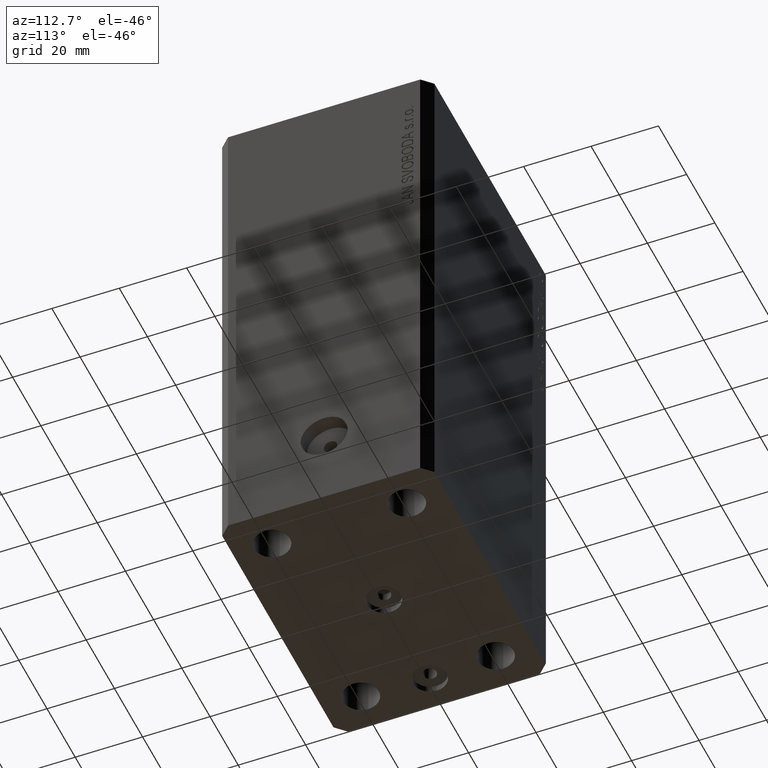
[diagram: clean part render]
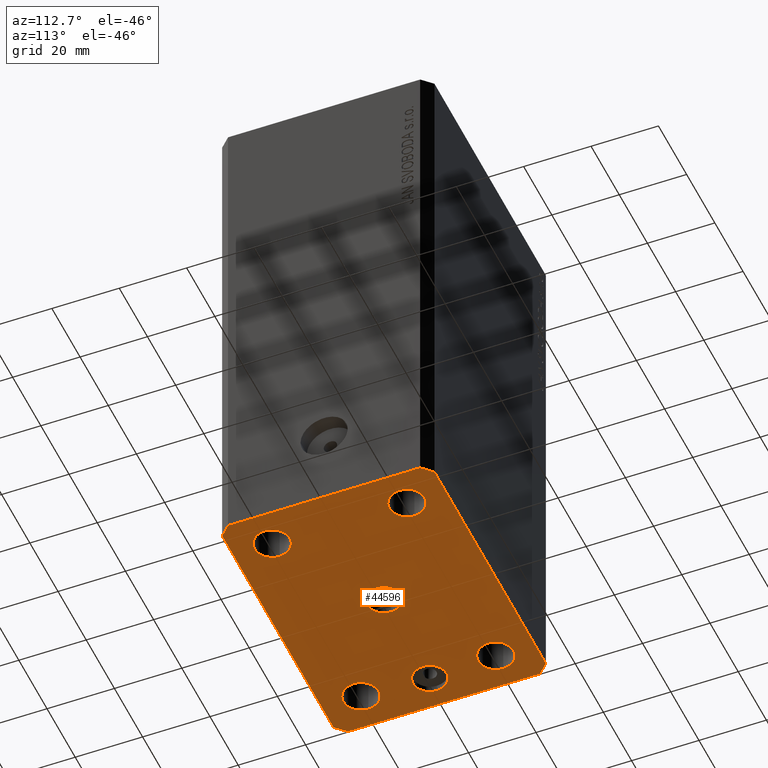
[diagram: same view with one face highlighted and labeled with its STEP entity id]
A machine part, auxiliary view. The second image highlights one B-rep face of the part: STEP entity #44596.
In plain terms, the highlighted planar face has unit normal (0, 0, 1).
Its self-contained STEP definition (entity closure, byte-faithful):
#205 = DIRECTION ( 'NONE',  ( -0.000000000000000000, -0.000000000000000000, -1.000000000000000000 ) ) ;
#392 = EDGE_CURVE ( 'NONE', #41515, #33416, #40747, .T. ) ;
#425 = CARTESIAN_POINT ( 'NONE',  ( -32.50000000000000000, 0.000000000000000000, -153.0000000000000000 ) ) ;
#462 = ORIENTED_EDGE ( 'NONE', *, *, #31463, .F. ) ;
#696 = AXIS2_PLACEMENT_3D ( 'NONE', #38533, #205, #13966 ) ;
#1376 = EDGE_CURVE ( 'NONE', #23502, #16459, #1660, .T. ) ;
#1660 = CIRCLE ( 'NONE', #4539, 5.249999999999997335 ) ;
#2056 = CARTESIAN_POINT ( 'NONE',  ( 42.50000000000051870, 28.49999999999995381, -153.0000000000000000 ) ) ;
#2268 = CARTESIAN_POINT ( 'NONE',  ( 5.000000000000000000, 6.123233995736765296E-16, -153.0000000000000000 ) ) ;
#2312 = CARTESIAN_POINT ( 'NONE',  ( -27.50000000000000355, 6.123233995736762338E-16, -153.0000000000000000 ) ) ;
#2410 = CARTESIAN_POINT ( 'NONE',  ( -42.50000000000000000, 28.50000000000000000, -153.0000000000000000 ) ) ;
#2689 = ORIENTED_EDGE ( 'NONE', *, *, #12583, .F. ) ;
#2719 = DIRECTION ( 'NONE',  ( 0.7071067811865471286, -0.7071067811865479058, 0.000000000000000000 ) ) ;
#2720 = EDGE_CURVE ( 'NONE', #33416, #42301, #21864, .T. ) ;
#3277 = VERTEX_POINT ( 'NONE', #2268 ) ;
#3420 = EDGE_CURVE ( 'NONE', #5169, #42276, #20996, .T. ) ;
#3534 = AXIS2_PLACEMENT_3D ( 'NONE', #12638, #35486, #42470 ) ;
#3647 = CIRCLE ( 'NONE', #40343, 5.249999999999997335 ) ;
#4539 = AXIS2_PLACEMENT_3D ( 'NONE', #19868, #39698, #6300 ) ;
#4886 = EDGE_LOOP ( 'NONE', ( #21499, #24214 ) ) ;
#4949 = ORIENTED_EDGE ( 'NONE', *, *, #28415, .F. ) ;
#5169 = VERTEX_POINT ( 'NONE', #43977 ) ;
#5636 = PLANE ( 'NONE',  #3534 ) ;
#5879 = EDGE_LOOP ( 'NONE', ( #2689, #25726 ) ) ;
#6034 = CARTESIAN_POINT ( 'NONE',  ( -36.74999999999999289, -20.00000000000000355, -153.0000000000000000 ) ) ;
#6300 = DIRECTION ( 'NONE',  ( 1.000000000000000000, 0.000000000000000000, 0.000000000000000000 ) ) ;
#6659 = VECTOR ( 'NONE', #30858, 1000.000000000000000 ) ;
#6900 = ORIENTED_EDGE ( 'NONE', *, *, #14220, .F. ) ;
#6961 = DIRECTION ( 'NONE',  ( 1.000000000000000000, 0.000000000000000000, 0.000000000000000000 ) ) ;
#7461 = CIRCLE ( 'NONE', #38552, 5.249999999999997335 ) ;
#7475 = CARTESIAN_POINT ( 'NONE',  ( 39.50000000000056843, 31.50000000000000000, -153.0000000000000000 ) ) ;
#7677 = CARTESIAN_POINT ( 'NONE',  ( -26.24999999999999289, -20.00000000000000355, -153.0000000000000000 ) ) ;
#8091 = DIRECTION ( 'NONE',  ( -1.000000000000000000, 0.000000000000000000, 0.000000000000000000 ) ) ;
#8298 = EDGE_CURVE ( 'NONE', #16459, #23502, #7461, .T. ) ;
#8504 = CARTESIAN_POINT ( 'NONE',  ( 39.50000000000056843, 31.50000000000000000, -153.0000000000000000 ) ) ;
#8936 = AXIS2_PLACEMENT_3D ( 'NONE', #29349, #14690, #18968 ) ;
#9036 = VERTEX_POINT ( 'NONE', #2056 ) ;
#9836 = VECTOR ( 'NONE', #11084, 1000.000000000000000 ) ;
#9943 = ORIENTED_EDGE ( 'NONE', *, *, #10502, .F. ) ;
#10502 = EDGE_CURVE ( 'NONE', #37693, #40212, #28420, .T. ) ;
#10778 = ORIENTED_EDGE ( 'NONE', *, *, #392, .F. ) ;
#11084 = DIRECTION ( 'NONE',  ( -1.000000000000000000, 0.000000000000000000, 0.000000000000000000 ) ) ;
#11244 = CARTESIAN_POINT ( 'NONE',  ( -37.50000000000000000, 0.000000000000000000, -153.0000000000000000 ) ) ;
#11579 = CARTESIAN_POINT ( 'NONE',  ( 31.49999999999999289, -20.00000000000000355, -153.0000000000000000 ) ) ;
#12145 = CARTESIAN_POINT ( 'NONE',  ( 31.50000000000000000, 19.99999999999999289, -153.0000000000000000 ) ) ;
#12277 = CIRCLE ( 'NONE', #37490, 5.249999999999997335 ) ;
#12327 = CARTESIAN_POINT ( 'NONE',  ( -31.49999999999999289, -20.00000000000000355, -153.0000000000000000 ) ) ;
#12583 = EDGE_CURVE ( 'NONE', #22463, #17443, #25581, .T. ) ;
#12638 = CARTESIAN_POINT ( 'NONE',  ( 0.000000000000000000, 0.000000000000000000, -153.0000000000000000 ) ) ;
#13059 = EDGE_CURVE ( 'NONE', #17443, #22463, #33528, .T. ) ;
#13085 = VECTOR ( 'NONE', #31097, 1000.000000000000114 ) ;
#13345 = EDGE_LOOP ( 'NONE', ( #9943, #13847 ) ) ;
#13601 = CIRCLE ( 'NONE', #28030, 5.250000000000000888 ) ;
#13771 = AXIS2_PLACEMENT_3D ( 'NONE', #37706, #20137, #16744 ) ;
#13847 = ORIENTED_EDGE ( 'NONE', *, *, #26024, .F. ) ;
#13966 = DIRECTION ( 'NONE',  ( 1.000000000000000000, 0.000000000000000000, 0.000000000000000000 ) ) ;
#14116 = VECTOR ( 'NONE', #31523, 1000.000000000000000 ) ;
#14220 = EDGE_CURVE ( 'NONE', #42301, #9036, #24745, .T. ) ;
#14225 = ORIENTED_EDGE ( 'NONE', *, *, #24541, .F. ) ;
#14527 = FACE_BOUND ( 'NONE', #43108, .T. ) ;
#14690 = DIRECTION ( 'NONE',  ( -0.000000000000000000, -0.000000000000000000, -1.000000000000000000 ) ) ;
#14765 = CARTESIAN_POINT ( 'NONE',  ( -36.75000000000000000, 19.99999999999999645, -153.0000000000000000 ) ) ;
#14971 = FACE_BOUND ( 'NONE', #17059, .T. ) ;
#15310 = DIRECTION ( 'NONE',  ( 1.000000000000000000, 0.000000000000000000, 0.000000000000000000 ) ) ;
#15722 = DIRECTION ( 'NONE',  ( 1.000000000000000000, 0.000000000000000000, 0.000000000000000000 ) ) ;
#15829 = CARTESIAN_POINT ( 'NONE',  ( -42.50000000000000000, -28.50000000000000000, -153.0000000000000000 ) ) ;
#15931 = CARTESIAN_POINT ( 'NONE',  ( -42.50000000000000000, 28.50000000000000000, -153.0000000000000000 ) ) ;
#16269 = ORIENTED_EDGE ( 'NONE', *, *, #28427, .F. ) ;
#16459 = VERTEX_POINT ( 'NONE', #17914 ) ;
#16744 = DIRECTION ( 'NONE',  ( -1.000000000000000000, 0.000000000000000000, 0.000000000000000000 ) ) ;
#17059 = EDGE_LOOP ( 'NONE', ( #16269, #39902 ) ) ;
#17157 = CARTESIAN_POINT ( 'NONE',  ( -39.50000000000000711, 31.50000000000000000, -153.0000000000000000 ) ) ;
#17437 = EDGE_LOOP ( 'NONE', ( #21632, #18183 ) ) ;
#17443 = VERTEX_POINT ( 'NONE', #2312 ) ;
#17914 = CARTESIAN_POINT ( 'NONE',  ( 36.75000000000000000, 19.99999999999999289, -153.0000000000000000 ) ) ;
#18068 = CIRCLE ( 'NONE', #43235, 5.250000000000000888 ) ;
#18183 = ORIENTED_EDGE ( 'NONE', *, *, #1376, .F. ) ;
#18435 = EDGE_CURVE ( 'NONE', #27056, #5169, #30981, .T. ) ;
#18893 = CIRCLE ( 'NONE', #40469, 5.000000000000000000 ) ;
#18968 = DIRECTION ( 'NONE',  ( 1.000000000000000000, 0.000000000000000000, 0.000000000000000000 ) ) ;
#19558 = DIRECTION ( 'NONE',  ( 1.000000000000000000, 0.000000000000000000, 0.000000000000000000 ) ) ;
#19868 = CARTESIAN_POINT ( 'NONE',  ( 31.50000000000000000, 19.99999999999999289, -153.0000000000000000 ) ) ;
#20054 = CARTESIAN_POINT ( 'NONE',  ( 42.50000000000051870, 28.49999999999995381, -153.0000000000000000 ) ) ;
#20137 = DIRECTION ( 'NONE',  ( 0.000000000000000000, 0.000000000000000000, -1.000000000000000000 ) ) ;
#20234 = ORIENTED_EDGE ( 'NONE', *, *, #18435, .F. ) ;
#20970 = DIRECTION ( 'NONE',  ( -1.000000000000000000, 0.000000000000000000, 0.000000000000000000 ) ) ;
#20996 = LINE ( 'NONE', #17157, #26903 ) ;
#21499 = ORIENTED_EDGE ( 'NONE', *, *, #29925, .F. ) ;
#21632 = ORIENTED_EDGE ( 'NONE', *, *, #8298, .F. ) ;
#21749 = FACE_OUTER_BOUND ( 'NONE', #30958, .T. ) ;
#21864 = LINE ( 'NONE', #22303, #22592 ) ;
#22303 = CARTESIAN_POINT ( 'NONE',  ( 39.50000000000000711, -31.50000000000000000, -153.0000000000000000 ) ) ;
#22463 = VERTEX_POINT ( 'NONE', #11244 ) ;
#22569 = EDGE_CURVE ( 'NONE', #42058, #24124, #13601, .T. ) ;
#22592 = VECTOR ( 'NONE', #28411, 1000.000000000000000 ) ;
#22877 = ORIENTED_EDGE ( 'NONE', *, *, #23432, .F. ) ;
#23432 = EDGE_CURVE ( 'NONE', #42276, #38133, #28895, .T. ) ;
#23502 = VERTEX_POINT ( 'NONE', #30401 ) ;
#23704 = VECTOR ( 'NONE', #42622, 1000.000000000000000 ) ;
#24124 = VERTEX_POINT ( 'NONE', #7677 ) ;
#24214 = ORIENTED_EDGE ( 'NONE', *, *, #33398, .F. ) ;
#24541 = EDGE_CURVE ( 'NONE', #35474, #37575, #3647, .T. ) ;
#24745 = LINE ( 'NONE', #41640, #14116 ) ;
#25414 = CARTESIAN_POINT ( 'NONE',  ( 42.50000000000000711, -28.50000000000000355, -153.0000000000000000 ) ) ;
#25538 = ORIENTED_EDGE ( 'NONE', *, *, #2720, .F. ) ;
#25581 = CIRCLE ( 'NONE', #42850, 4.999999999999997335 ) ;
#25726 = ORIENTED_EDGE ( 'NONE', *, *, #13059, .F. ) ;
#25878 = ORIENTED_EDGE ( 'NONE', *, *, #37010, .F. ) ;
#26024 = EDGE_CURVE ( 'NONE', #40212, #37693, #43973, .T. ) ;
#26903 = VECTOR ( 'NONE', #34727, 1000.000000000000000 ) ;
#27032 = LINE ( 'NONE', #20054, #13085 ) ;
#27056 = VERTEX_POINT ( 'NONE', #8504 ) ;
#28030 = AXIS2_PLACEMENT_3D ( 'NONE', #36050, #32683, #15310 ) ;
#28411 = DIRECTION ( 'NONE',  ( 0.7071067811865483499, 0.7071067811865466846, 0.000000000000000000 ) ) ;
#28415 = EDGE_CURVE ( 'NONE', #37575, #35474, #12277, .T. ) ;
#28420 = CIRCLE ( 'NONE', #8936, 5.250000000000000888 ) ;
#28427 = EDGE_CURVE ( 'NONE', #24124, #42058, #18068, .T. ) ;
#28518 = FACE_BOUND ( 'NONE', #4886, .T. ) ;
#28555 = CARTESIAN_POINT ( 'NONE',  ( -26.25000000000000000, 19.99999999999999645, -153.0000000000000000 ) ) ;
#28895 = LINE ( 'NONE', #2410, #23704 ) ;
#29349 = CARTESIAN_POINT ( 'NONE',  ( -31.50000000000000000, 19.99999999999999645, -153.0000000000000000 ) ) ;
#29925 = EDGE_CURVE ( 'NONE', #37061, #3277, #39702, .T. ) ;
#30401 = CARTESIAN_POINT ( 'NONE',  ( 26.25000000000000355, 19.99999999999999289, -153.0000000000000000 ) ) ;
#30445 = CARTESIAN_POINT ( 'NONE',  ( 39.50000000000000711, -31.50000000000000000, -153.0000000000000000 ) ) ;
#30468 = CARTESIAN_POINT ( 'NONE',  ( 31.49999999999999289, -20.00000000000000355, -153.0000000000000000 ) ) ;
#30508 = DIRECTION ( 'NONE',  ( -1.000000000000000000, 0.000000000000000000, 0.000000000000000000 ) ) ;
#30858 = DIRECTION ( 'NONE',  ( 1.000000000000000000, 0.000000000000000000, 0.000000000000000000 ) ) ;
#30905 = DIRECTION ( 'NONE',  ( 0.000000000000000000, 0.000000000000000000, -1.000000000000000000 ) ) ;
#30958 = EDGE_LOOP ( 'NONE', ( #20234, #462, #6900, #25538, #10778, #25878, #22877, #43315 ) ) ;
#30981 = LINE ( 'NONE', #7475, #9836 ) ;
#31097 = DIRECTION ( 'NONE',  ( -0.7071067811865356934, 0.7071067811865594521, 0.000000000000000000 ) ) ;
#31463 = EDGE_CURVE ( 'NONE', #9036, #27056, #27032, .T. ) ;
#31523 = DIRECTION ( 'NONE',  ( 8.886653596232072440E-15, 1.000000000000000000, 0.000000000000000000 ) ) ;
#32428 = DIRECTION ( 'NONE',  ( -0.000000000000000000, -0.000000000000000000, -1.000000000000000000 ) ) ;
#32683 = DIRECTION ( 'NONE',  ( -0.000000000000000000, -0.000000000000000000, -1.000000000000000000 ) ) ;
#32933 = CARTESIAN_POINT ( 'NONE',  ( 36.74999999999999289, -20.00000000000000355, -153.0000000000000000 ) ) ;
#33203 = DIRECTION ( 'NONE',  ( 0.000000000000000000, 0.000000000000000000, -1.000000000000000000 ) ) ;
#33398 = EDGE_CURVE ( 'NONE', #3277, #37061, #18893, .T. ) ;
#33416 = VERTEX_POINT ( 'NONE', #30445 ) ;
#33528 = CIRCLE ( 'NONE', #41440, 4.999999999999997335 ) ;
#34727 = DIRECTION ( 'NONE',  ( -0.7071067811865471286, -0.7071067811865479058, 0.000000000000000000 ) ) ;
#35181 = CARTESIAN_POINT ( 'NONE',  ( -39.50000000000000711, -31.50000000000000000, -153.0000000000000000 ) ) ;
#35474 = VERTEX_POINT ( 'NONE', #32933 ) ;
#35486 = DIRECTION ( 'NONE',  ( 0.000000000000000000, 0.000000000000000000, 1.000000000000000000 ) ) ;
#35729 = DIRECTION ( 'NONE',  ( -0.000000000000000000, -0.000000000000000000, -1.000000000000000000 ) ) ;
#36050 = CARTESIAN_POINT ( 'NONE',  ( -31.49999999999999289, -20.00000000000000355, -153.0000000000000000 ) ) ;
#36055 = DIRECTION ( 'NONE',  ( 1.000000000000000000, 0.000000000000000000, 0.000000000000000000 ) ) ;
#36550 = FACE_BOUND ( 'NONE', #5879, .T. ) ;
#37006 = CARTESIAN_POINT ( 'NONE',  ( -5.000000000000000000, 0.000000000000000000, -153.0000000000000000 ) ) ;
#37010 = EDGE_CURVE ( 'NONE', #38133, #41515, #40161, .T. ) ;
#37061 = VERTEX_POINT ( 'NONE', #37006 ) ;
#37490 = AXIS2_PLACEMENT_3D ( 'NONE', #11579, #35729, #19558 ) ;
#37575 = VERTEX_POINT ( 'NONE', #39394 ) ;
#37641 = CARTESIAN_POINT ( 'NONE',  ( -42.50000000000000000, -28.50000000000000000, -153.0000000000000000 ) ) ;
#37693 = VERTEX_POINT ( 'NONE', #28555 ) ;
#37706 = CARTESIAN_POINT ( 'NONE',  ( 0.000000000000000000, 0.000000000000000000, -153.0000000000000000 ) ) ;
#37886 = DIRECTION ( 'NONE',  ( -0.000000000000000000, -0.000000000000000000, -1.000000000000000000 ) ) ;
#38133 = VERTEX_POINT ( 'NONE', #37641 ) ;
#38533 = CARTESIAN_POINT ( 'NONE',  ( -31.50000000000000000, 19.99999999999999645, -153.0000000000000000 ) ) ;
#38552 = AXIS2_PLACEMENT_3D ( 'NONE', #12145, #43469, #36055 ) ;
#38871 = FACE_BOUND ( 'NONE', #13345, .T. ) ;
#39009 = DIRECTION ( 'NONE',  ( 0.000000000000000000, 0.000000000000000000, -1.000000000000000000 ) ) ;
#39394 = CARTESIAN_POINT ( 'NONE',  ( 26.24999999999999645, -20.00000000000000355, -153.0000000000000000 ) ) ;
#39698 = DIRECTION ( 'NONE',  ( -0.000000000000000000, -0.000000000000000000, -1.000000000000000000 ) ) ;
#39702 = CIRCLE ( 'NONE', #13771, 5.000000000000000000 ) ;
#39834 = VECTOR ( 'NONE', #2719, 1000.000000000000000 ) ;
#39902 = ORIENTED_EDGE ( 'NONE', *, *, #22569, .F. ) ;
#40161 = LINE ( 'NONE', #15829, #39834 ) ;
#40212 = VERTEX_POINT ( 'NONE', #14765 ) ;
#40343 = AXIS2_PLACEMENT_3D ( 'NONE', #30468, #37886, #6961 ) ;
#40469 = AXIS2_PLACEMENT_3D ( 'NONE', #42390, #39009, #8091 ) ;
#40747 = LINE ( 'NONE', #41196, #6659 ) ;
#41071 = CARTESIAN_POINT ( 'NONE',  ( -32.50000000000000000, 0.000000000000000000, -153.0000000000000000 ) ) ;
#41196 = CARTESIAN_POINT ( 'NONE',  ( -39.50000000000000711, -31.50000000000000000, -153.0000000000000000 ) ) ;
#41440 = AXIS2_PLACEMENT_3D ( 'NONE', #425, #30905, #20970 ) ;
#41515 = VERTEX_POINT ( 'NONE', #35181 ) ;
#41640 = CARTESIAN_POINT ( 'NONE',  ( 42.50000000000000711, -28.50000000000000355, -153.0000000000000000 ) ) ;
#42058 = VERTEX_POINT ( 'NONE', #6034 ) ;
#42252 = FACE_BOUND ( 'NONE', #17437, .T. ) ;
#42276 = VERTEX_POINT ( 'NONE', #15931 ) ;
#42301 = VERTEX_POINT ( 'NONE', #25414 ) ;
#42390 = CARTESIAN_POINT ( 'NONE',  ( 0.000000000000000000, 0.000000000000000000, -153.0000000000000000 ) ) ;
#42470 = DIRECTION ( 'NONE',  ( 1.000000000000000000, 0.000000000000000000, -0.000000000000000000 ) ) ;
#42622 = DIRECTION ( 'NONE',  ( 0.000000000000000000, -1.000000000000000000, 0.000000000000000000 ) ) ;
#42850 = AXIS2_PLACEMENT_3D ( 'NONE', #41071, #33203, #30508 ) ;
#43108 = EDGE_LOOP ( 'NONE', ( #14225, #4949 ) ) ;
#43235 = AXIS2_PLACEMENT_3D ( 'NONE', #12327, #32428, #15722 ) ;
#43315 = ORIENTED_EDGE ( 'NONE', *, *, #3420, .F. ) ;
#43469 = DIRECTION ( 'NONE',  ( -0.000000000000000000, -0.000000000000000000, -1.000000000000000000 ) ) ;
#43973 = CIRCLE ( 'NONE', #696, 5.250000000000000888 ) ;
#43977 = CARTESIAN_POINT ( 'NONE',  ( -39.50000000000000711, 31.50000000000000000, -153.0000000000000000 ) ) ;
#44596 = ADVANCED_FACE ( 'NONE', ( #28518, #36550, #14971, #14527, #42252, #38871, #21749 ), #5636, .F. ) ;